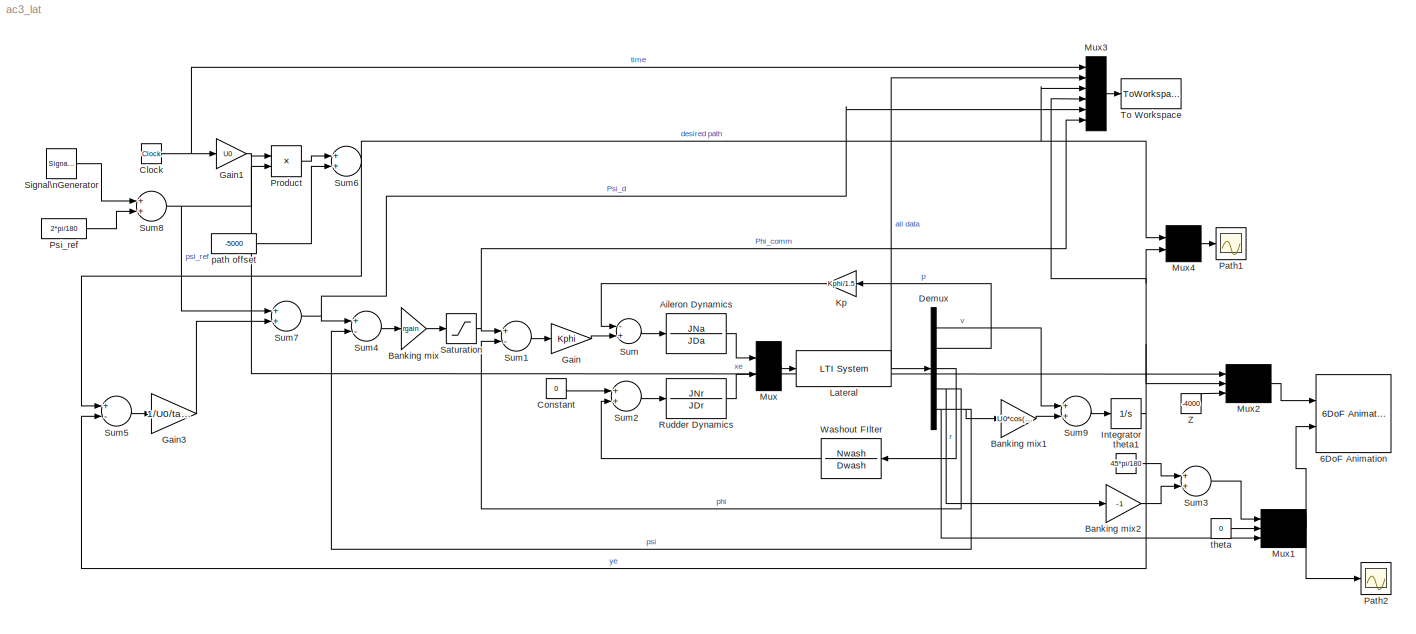
MODEL ac3_lat
KIND model
CONFIG AbsTol = auto
CONFIG FixedStep = auto
CONFIG MaxStep = auto
CONFIG MinStep = auto
CONFIG RelTol = 1e-3
CONFIG Solver = ode45
CONFIG SolverMode = Auto
CONFIG StartTime = 0.0
CONFIG StopTime = 1000
BLOCK [Reference] 6DoF Animation  REF=aerolibanim/6DoF Animation
  Ports = [2]
  SourceBlock = aerolibanim/6DoF Animation
  SourceType = 6DoF_Animation
  u1 = [0 4000 -6000 2000 -5000 -3000]
  u2 = 0.1
  u3 = 10
  u4 = [4000 0 -5000]
  u5 = Fly alongside
  u6 = [-100 0 -10]
  u7 = 10
  u8 = on
BLOCK [TransferFcn] Aileron Dynamics
  Denominator = JDa
  Numerator = JNa
BLOCK [Gain] Banking mix
  Gain = rgain
BLOCK [Gain] Banking mix1
  Gain = U0*cos(theta0)
BLOCK [Gain] Banking mix2
  Gain = -1
BLOCK [Clock] Clock
  Decimation = 10
BLOCK [Constant] Constant
  Value = 0
BLOCK [Demux] Demux
  Outputs = 5
  Ports = [1, 5]
BLOCK [Gain] Gain
  Gain = Kphi
BLOCK [Gain] Gain1
  Gain = U0
BLOCK [Gain] Gain3
  Gain = 1/U0/tau_2
BLOCK [Integrator] Integrator
  Ports = [1, 1]
BLOCK [Gain] Kp
  Gain = Kphi/1.5
BLOCK [Reference] Lateral  REF=cstblocks/LTI System
  IC = 0
  Ports = [1, 1]
  SourceBlock = cstblocks/LTI System
  SourceType = LTI Block
  sys = syslat2
BLOCK [Mux] Mux
  Inputs = 2
  Ports = [2, 1]
BLOCK [Mux] Mux1
  Inputs = 3
  Ports = [3, 1]
BLOCK [Mux] Mux2
  Inputs = 3
  Ports = [3, 1]
BLOCK [Mux] Mux3
  Inputs = 6
  Ports = [6, 1]
BLOCK [Mux] Mux4
  DisplayOption = signals
  Inputs = 2
  Ports = [2, 1]
BLOCK [Scope] Path1
  DataFormat = StructureWithTime
  NumInputPorts = 1
  Ports = [1]
  SaveName = ScopeData1
  TimeRange = 1000
  YMax = 9000
  YMin = -8000
BLOCK [Scope] Path2
  DataFormat = StructureWithTime
  NumInputPorts = 1
  Ports = [1]
  TimeRange = 1000
  YMax = 1.4
  YMin = -0.5
BLOCK [Product] Product
  Ports = [2, 1]
BLOCK [Constant] Psi_ref
  Value = 2*pi/180
BLOCK [TransferFcn] Rudder Dynamics
  Denominator = JDr
  Numerator = JNr
BLOCK [Saturate] Saturation
  LowerLimit = -30*pi/180
  UpperLimit = 30*pi/180
BLOCK [SignalGenerator] Signal\nGenerator
  Amplitude = 3*pi/180
  Frequency = .015
  Units = rad/sec
  WaveForm = square
BLOCK [Sum] Sum
  Inputs = -+
  Ports = [2, 1]
BLOCK [Sum] Sum1
  Inputs = +-
  Ports = [2, 1]
BLOCK [Sum] Sum2
  Ports = [2, 1]
BLOCK [Sum] Sum3
  Ports = [2, 1]
BLOCK [Sum] Sum4
  Inputs = +-
  Ports = [2, 1]
BLOCK [Sum] Sum5
  Inputs = +-
  Ports = [2, 1]
BLOCK [Sum] Sum6
  Ports = [2, 1]
BLOCK [Sum] Sum7
  Ports = [2, 1]
BLOCK [Sum] Sum8
  Ports = [2, 1]
BLOCK [Sum] Sum9
  Ports = [2, 1]
BLOCK [ToWorkspace] To Workspace
  MaxDataPoints = inf
  SampleTime = -1
  SaveFormat = Array
  VariableName = ac3out
BLOCK [TransferFcn] Washout FIlter
  Denominator = Dwash
  Numerator = Nwash
BLOCK [Constant] Z
  Value = -4000
BLOCK [Constant] path offset
  Value = -5000
BLOCK [Constant] theta
  Value = 0
BLOCK [Constant] theta1
  Value = 45*pi/180
LINE Aileron Dynamics:1 -> Mux:1
LINE Banking mix1:1 -> Sum9:2
LINE Banking mix2:1 -> Sum3:2
LINE Banking mix:1 -> Saturation:1
NET Clock:1 -> Gain1:1, Mux3:1
LINE Constant:1 -> Sum2:1
LINE Demux:1 -> Sum9:1
LINE Demux:2 -> Kp:1
LINE Demux:3 -> Washout FIlter:1
NET Demux:4 -> Banking mix2:1, Sum1:2
NET Demux:5 -> Banking mix1:1, Mux1:3, Sum4:2
NET Gain1:1 -> Mux2:1, Product:1
LINE Gain3:1 -> Sum7:2
LINE Gain:1 -> Sum:2
NET Integrator:1 -> Mux2:2, Mux3:4, Mux4:2, Sum5:2
LINE Kp:1 -> Sum:1
NET Lateral:1 -> Demux:1, Mux3:2
NET Mux1:1 -> 6DoF Animation:2, Path2:1
LINE Mux2:1 -> 6DoF Animation:1
LINE Mux3:1 -> To Workspace:1
LINE Mux4:1 -> Path1:1
LINE Mux:1 -> Lateral:1
LINE Product:1 -> Sum6:1
LINE Psi_ref:1 -> Sum8:2
LINE Rudder Dynamics:1 -> Mux:2
NET Saturation:1 -> Mux3:6, Sum1:1
LINE Signal\nGenerator:1 -> Sum8:1
LINE Sum1:1 -> Gain:1
LINE Sum2:1 -> Rudder Dynamics:1
LINE Sum3:1 -> Mux1:1
LINE Sum4:1 -> Banking mix:1
LINE Sum5:1 -> Gain3:1
NET Sum6:1 -> Mux3:3, Mux4:1, Sum5:1
NET Sum7:1 -> Mux3:5, Sum4:1
NET Sum8:1 -> Product:2, Sum7:1
LINE Sum9:1 -> Integrator:1
LINE Sum:1 -> Aileron Dynamics:1
LINE Washout FIlter:1 -> Sum2:2
LINE Z:1 -> Mux2:3
LINE path offset:1 -> Sum6:2
LINE theta1:1 -> Sum3:1
LINE theta:1 -> Mux1:2
note: NET lines group one-source signal fan-out (src -> all destinations, sorted); 1:1 wires keep LINE
